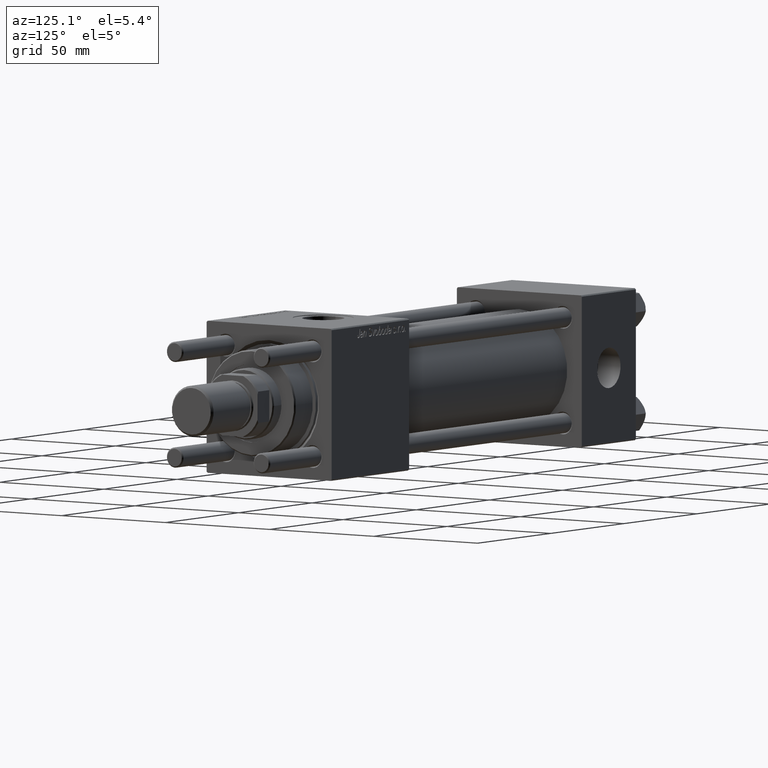
[diagram: clean part render]
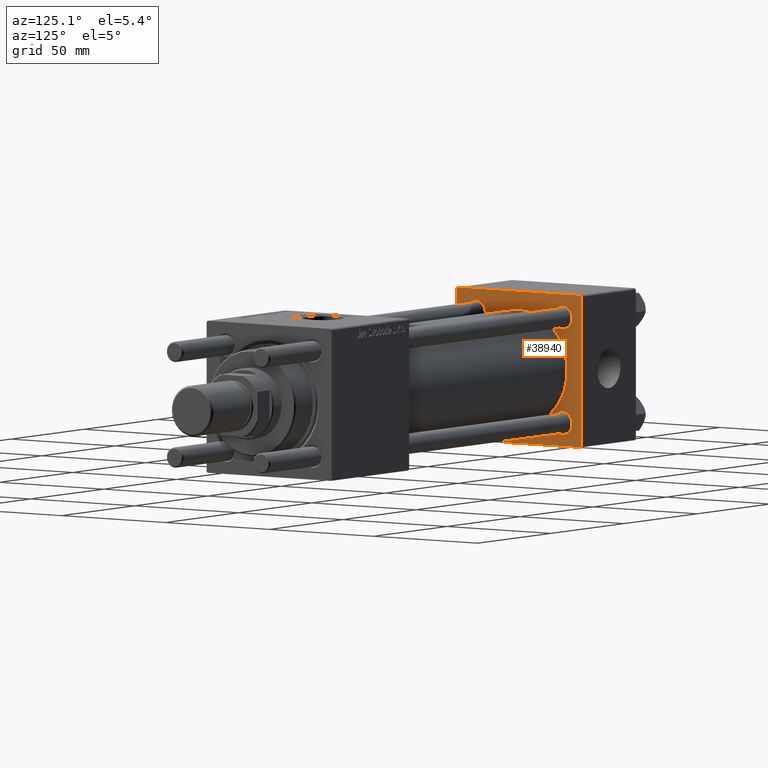
[diagram: same view with one face highlighted and labeled with its STEP entity id]
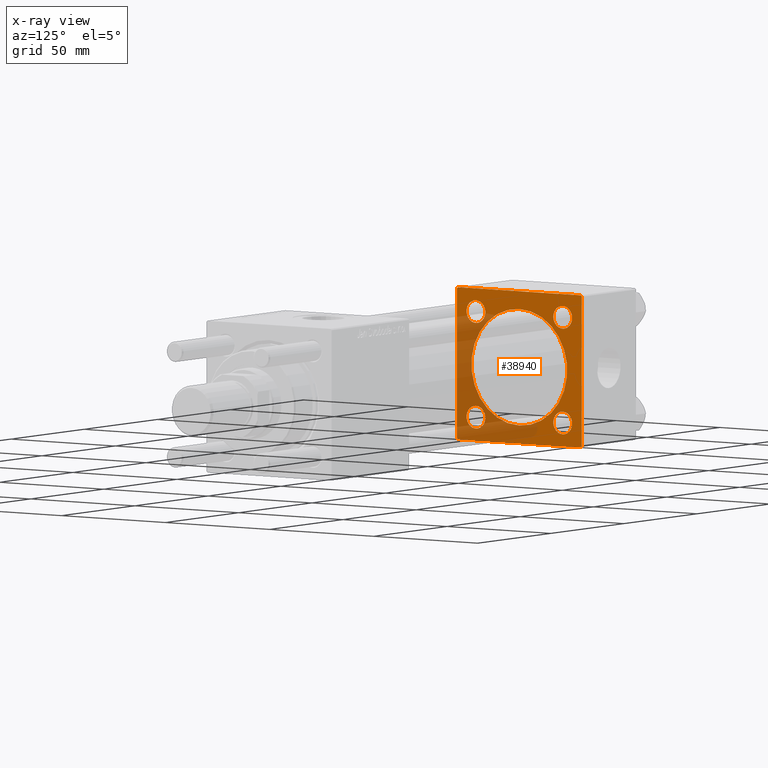
[diagram: x-ray of the same camera — body ghosted, the highlighted face saturated]
A machine part, auxiliary view. The second image highlights one B-rep face of the part: STEP entity #38940.
The next image is the same camera in x-ray: the body ghosted, the highlighted face saturated — about 38% of this face is hidden behind the body in this view.
In plain terms, the highlighted planar face has unit normal (-1, 0, 0).
Its self-contained STEP definition (entity closure, byte-faithful):
#41 = CARTESIAN_POINT ( 'NONE',  ( 37.00000000000000711, -2.602085213965210642E-15, 0.000000000000000000 ) ) ;
#98 = CARTESIAN_POINT ( 'NONE',  ( 37.00000000000000000, -20.84999999999999076, 16.35000000000002629 ) ) ;
#397 = EDGE_CURVE ( 'NONE', #18526, #7743, #7201, .T. ) ;
#408 = DIRECTION ( 'NONE',  ( 0.000000000000000000, 0.000000000000000000, 1.000000000000000000 ) ) ;
#670 = EDGE_CURVE ( 'NONE', #18494, #18833, #3389, .T. ) ;
#840 = CARTESIAN_POINT ( 'NONE',  ( 37.00000000000000000, -29.50000000000000000, -30.00000000000000711 ) ) ;
#970 = DIRECTION ( 'NONE',  ( 0.000000000000000000, 0.000000000000000000, 1.000000000000000000 ) ) ;
#1044 = AXIS2_PLACEMENT_3D ( 'NONE', #35286, #46221, #31900 ) ;
#1433 = AXIS2_PLACEMENT_3D ( 'NONE', #4886, #41295, #408 ) ;
#1826 = CIRCLE ( 'NONE', #15190, 4.499999999999976019 ) ;
#1830 = EDGE_CURVE ( 'NONE', #7504, #27516, #29202, .T. ) ;
#2014 = ORIENTED_EDGE ( 'NONE', *, *, #397, .T. ) ;
#3240 = CARTESIAN_POINT ( 'NONE',  ( 37.00000000000000000, 29.49999999999999289, 30.00000000000000000 ) ) ;
#3277 = ORIENTED_EDGE ( 'NONE', *, *, #6373, .T. ) ;
#3389 = CIRCLE ( 'NONE', #35780, 23.00000000000000000 ) ;
#3396 = DIRECTION ( 'NONE',  ( 0.000000000000000000, 0.000000000000000000, 1.000000000000000000 ) ) ;
#3906 = LINE ( 'NONE', #22142, #55835 ) ;
#3931 = DIRECTION ( 'NONE',  ( 1.000000000000000000, -0.000000000000000000, 0.000000000000000000 ) ) ;
#4718 = CARTESIAN_POINT ( 'NONE',  ( 37.00000000000000711, 2.146024240737016609E-16, -23.00000000000000000 ) ) ;
#4886 = CARTESIAN_POINT ( 'NONE',  ( 37.00000000000000000, -20.84999999999999076, -20.85000000000000497 ) ) ;
#4971 = CARTESIAN_POINT ( 'NONE',  ( 37.00000000000000000, 20.84999999999999787, -16.35000000000002274 ) ) ;
#5249 = ORIENTED_EDGE ( 'NONE', *, *, #28603, .T. ) ;
#5298 = AXIS2_PLACEMENT_3D ( 'NONE', #41849, #24263, #970 ) ;
#5618 = FACE_BOUND ( 'NONE', #48881, .T. ) ;
#5905 = CARTESIAN_POINT ( 'NONE',  ( 37.00000000000000000, 29.99999999999999289, 29.50000000000000000 ) ) ;
#6373 = EDGE_CURVE ( 'NONE', #45666, #20498, #47405, .T. ) ;
#6542 = AXIS2_PLACEMENT_3D ( 'NONE', #28912, #46810, #52144 ) ;
#7014 = CARTESIAN_POINT ( 'NONE',  ( 37.00000000000000000, -20.84999999999999076, 20.85000000000000497 ) ) ;
#7040 = ORIENTED_EDGE ( 'NONE', *, *, #13161, .T. ) ;
#7069 = AXIS2_PLACEMENT_3D ( 'NONE', #7671, #35099, #50212 ) ;
#7116 = VERTEX_POINT ( 'NONE', #29502 ) ;
#7201 = CIRCLE ( 'NONE', #40555, 4.499999999999976019 ) ;
#7217 = ORIENTED_EDGE ( 'NONE', *, *, #27292, .F. ) ;
#7232 = EDGE_CURVE ( 'NONE', #46103, #7116, #49138, .T. ) ;
#7504 = VERTEX_POINT ( 'NONE', #14820 ) ;
#7671 = CARTESIAN_POINT ( 'NONE',  ( 37.00000000000000000, 20.84999999999999787, -20.85000000000000142 ) ) ;
#7743 = VERTEX_POINT ( 'NONE', #48641 ) ;
#9175 = CARTESIAN_POINT ( 'NONE',  ( 37.00000000000000000, 20.84999999999999787, -25.34999999999997655 ) ) ;
#10215 = VERTEX_POINT ( 'NONE', #50138 ) ;
#11742 = DIRECTION ( 'NONE',  ( 0.000000000000000000, 0.000000000000000000, 1.000000000000000000 ) ) ;
#12234 = LINE ( 'NONE', #48331, #57665 ) ;
#13161 = EDGE_CURVE ( 'NONE', #36353, #46103, #48107, .T. ) ;
#14328 = CARTESIAN_POINT ( 'NONE',  ( 37.00000000000000000, 20.84999999999999787, 20.85000000000000142 ) ) ;
#14438 = ORIENTED_EDGE ( 'NONE', *, *, #1830, .T. ) ;
#14820 = CARTESIAN_POINT ( 'NONE',  ( 37.00000000000000000, 20.84999999999999787, 16.35000000000002274 ) ) ;
#14932 = EDGE_CURVE ( 'NONE', #27516, #7504, #1826, .T. ) ;
#15190 = AXIS2_PLACEMENT_3D ( 'NONE', #14328, #42350, #50704 ) ;
#15562 = CARTESIAN_POINT ( 'NONE',  ( 37.00000000000000000, 29.99999999999999289, -30.00000000000000000 ) ) ;
#16113 = CARTESIAN_POINT ( 'NONE',  ( 37.00000000000000000, 29.99999999999999289, -29.50000000000000000 ) ) ;
#16334 = CARTESIAN_POINT ( 'NONE',  ( 37.00000000000000000, -20.84999999999999076, 25.34999999999998010 ) ) ;
#17116 = CARTESIAN_POINT ( 'NONE',  ( 37.00000000000000000, -20.84999999999999076, -20.85000000000000497 ) ) ;
#18242 = CARTESIAN_POINT ( 'NONE',  ( 37.00000000000000000, 20.84999999999999787, 25.34999999999997655 ) ) ;
#18494 = VERTEX_POINT ( 'NONE', #52054 ) ;
#18517 = DIRECTION ( 'NONE',  ( 0.000000000000000000, 0.7071067811865474617, -0.7071067811865474617 ) ) ;
#18518 = DIRECTION ( 'NONE',  ( 0.000000000000000000, 0.000000000000000000, -1.000000000000000000 ) ) ;
#18526 = VERTEX_POINT ( 'NONE', #19874 ) ;
#18833 = VERTEX_POINT ( 'NONE', #4718 ) ;
#19368 = FACE_BOUND ( 'NONE', #26225, .T. ) ;
#19482 = CIRCLE ( 'NONE', #7069, 4.499999999999976019 ) ;
#19747 = CARTESIAN_POINT ( 'NONE',  ( 37.00000000000000000, -30.00000000000000000, 29.49999999999999289 ) ) ;
#19874 = CARTESIAN_POINT ( 'NONE',  ( 37.00000000000000000, -20.84999999999999076, -16.35000000000002629 ) ) ;
#20117 = CARTESIAN_POINT ( 'NONE',  ( 37.00000000000000000, 29.49999999999999289, 30.00000000000000000 ) ) ;
#20390 = EDGE_CURVE ( 'NONE', #23971, #10215, #54337, .T. ) ;
#20498 = VERTEX_POINT ( 'NONE', #16334 ) ;
#20573 = LINE ( 'NONE', #33406, #30833 ) ;
#20927 = DIRECTION ( 'NONE',  ( -1.000000000000000000, 0.000000000000000000, -0.000000000000000000 ) ) ;
#21441 = EDGE_CURVE ( 'NONE', #35320, #41674, #19482, .T. ) ;
#22142 = CARTESIAN_POINT ( 'NONE',  ( 37.00000000000000000, -29.50000000000001066, -30.00000000000000711 ) ) ;
#22430 = EDGE_CURVE ( 'NONE', #20498, #45666, #48972, .T. ) ;
#22907 = ORIENTED_EDGE ( 'NONE', *, *, #29760, .T. ) ;
#23228 = ORIENTED_EDGE ( 'NONE', *, *, #24079, .T. ) ;
#23392 = VECTOR ( 'NONE', #57007, 1000.000000000000000 ) ;
#23971 = VERTEX_POINT ( 'NONE', #19747 ) ;
#24079 = EDGE_CURVE ( 'NONE', #7116, #23971, #12234, .T. ) ;
#24263 = DIRECTION ( 'NONE',  ( 1.000000000000000000, -0.000000000000000000, 0.000000000000000000 ) ) ;
#24431 = FACE_BOUND ( 'NONE', #52541, .T. ) ;
#25976 = DIRECTION ( 'NONE',  ( -0.000000000000000000, -0.7071067811865474617, -0.7071067811865474617 ) ) ;
#26225 = EDGE_LOOP ( 'NONE', ( #32557, #46641 ) ) ;
#27292 = EDGE_CURVE ( 'NONE', #18833, #18494, #52973, .T. ) ;
#27483 = EDGE_CURVE ( 'NONE', #10215, #29433, #3906, .T. ) ;
#27516 = VERTEX_POINT ( 'NONE', #18242 ) ;
#28603 = EDGE_CURVE ( 'NONE', #32746, #54518, #57279, .T. ) ;
#28912 = CARTESIAN_POINT ( 'NONE',  ( 37.00000000000000000, 0.000000000000000000, 0.000000000000000000 ) ) ;
#29202 = CIRCLE ( 'NONE', #53932, 4.499999999999976019 ) ;
#29433 = VERTEX_POINT ( 'NONE', #840 ) ;
#29502 = CARTESIAN_POINT ( 'NONE',  ( 37.00000000000000000, -29.49999999999998579, 29.99999999999999289 ) ) ;
#29577 = CARTESIAN_POINT ( 'NONE',  ( 37.00000000000000000, 20.84999999999999787, 20.85000000000000142 ) ) ;
#29760 = EDGE_CURVE ( 'NONE', #7743, #18526, #55782, .T. ) ;
#29892 = EDGE_LOOP ( 'NONE', ( #59029, #5249, #39857, #7040, #57315, #23228, #39300, #50863 ) ) ;
#29939 = AXIS2_PLACEMENT_3D ( 'NONE', #30648, #58389, #49119 ) ;
#30396 = EDGE_CURVE ( 'NONE', #32746, #29433, #56429, .T. ) ;
#30648 = CARTESIAN_POINT ( 'NONE',  ( 37.00000000000000000, -20.84999999999999076, 20.85000000000000497 ) ) ;
#30833 = VECTOR ( 'NONE', #43517, 1000.000000000000000 ) ;
#31900 = DIRECTION ( 'NONE',  ( 0.000000000000000000, 0.000000000000000000, 1.000000000000000000 ) ) ;
#32557 = ORIENTED_EDGE ( 'NONE', *, *, #21441, .T. ) ;
#32746 = VERTEX_POINT ( 'NONE', #37719 ) ;
#33371 = FACE_BOUND ( 'NONE', #38943, .T. ) ;
#33406 = CARTESIAN_POINT ( 'NONE',  ( 37.00000000000000000, 29.99999999999999289, 30.00000000000000000 ) ) ;
#33438 = VECTOR ( 'NONE', #18518, 1000.000000000000000 ) ;
#34294 = DIRECTION ( 'NONE',  ( -0.000000000000000000, 0.7071067811865574537, 0.7071067811865376918 ) ) ;
#35099 = DIRECTION ( 'NONE',  ( -1.000000000000000000, 0.000000000000000000, -0.000000000000000000 ) ) ;
#35286 = CARTESIAN_POINT ( 'NONE',  ( 37.00000000000000000, 20.84999999999999787, -20.85000000000000142 ) ) ;
#35320 = VERTEX_POINT ( 'NONE', #9175 ) ;
#35430 = CARTESIAN_POINT ( 'NONE',  ( 37.00000000000000000, 29.99999999999999289, 30.00000000000000000 ) ) ;
#35780 = AXIS2_PLACEMENT_3D ( 'NONE', #41, #3931, #45401 ) ;
#36026 = VECTOR ( 'NONE', #43634, 1000.000000000000114 ) ;
#36126 = CARTESIAN_POINT ( 'NONE',  ( 37.00000000000000000, -30.00000000000000000, 29.99999999999999289 ) ) ;
#36353 = VERTEX_POINT ( 'NONE', #5905 ) ;
#37255 = CIRCLE ( 'NONE', #1044, 4.499999999999976019 ) ;
#37559 = PLANE ( 'NONE',  #6542 ) ;
#37719 = CARTESIAN_POINT ( 'NONE',  ( 37.00000000000000000, 29.49999999999997868, -30.00000000000000000 ) ) ;
#37852 = FACE_OUTER_BOUND ( 'NONE', #29892, .T. ) ;
#38940 = ADVANCED_FACE ( 'NONE', ( #24431, #19368, #33371, #5618, #42036, #37852 ), #37559, .F. ) ;
#38943 = EDGE_LOOP ( 'NONE', ( #3277, #52981 ) ) ;
#39300 = ORIENTED_EDGE ( 'NONE', *, *, #20390, .T. ) ;
#39611 = DIRECTION ( 'NONE',  ( 0.000000000000000000, -1.000000000000000000, -1.156482317317871725E-16 ) ) ;
#39776 = DIRECTION ( 'NONE',  ( -1.000000000000000000, 0.000000000000000000, -0.000000000000000000 ) ) ;
#39857 = ORIENTED_EDGE ( 'NONE', *, *, #55683, .F. ) ;
#40555 = AXIS2_PLACEMENT_3D ( 'NONE', #17116, #39776, #11742 ) ;
#41295 = DIRECTION ( 'NONE',  ( -1.000000000000000000, 0.000000000000000000, -0.000000000000000000 ) ) ;
#41674 = VERTEX_POINT ( 'NONE', #4971 ) ;
#41826 = CARTESIAN_POINT ( 'NONE',  ( 37.00000000000000000, 29.99999999999999289, -29.50000000000000000 ) ) ;
#41849 = CARTESIAN_POINT ( 'NONE',  ( 37.00000000000000711, -2.602085213965210642E-15, 0.000000000000000000 ) ) ;
#42036 = FACE_BOUND ( 'NONE', #43153, .T. ) ;
#42350 = DIRECTION ( 'NONE',  ( -1.000000000000000000, 0.000000000000000000, -0.000000000000000000 ) ) ;
#43153 = EDGE_LOOP ( 'NONE', ( #48508, #7217 ) ) ;
#43517 = DIRECTION ( 'NONE',  ( 0.000000000000000000, 0.000000000000000000, -1.000000000000000000 ) ) ;
#43634 = DIRECTION ( 'NONE',  ( 0.000000000000000000, -0.7071067811865474617, 0.7071067811865474617 ) ) ;
#43868 = DIRECTION ( 'NONE',  ( 0.000000000000000000, 0.000000000000000000, 1.000000000000000000 ) ) ;
#45401 = DIRECTION ( 'NONE',  ( 0.000000000000000000, 0.000000000000000000, 1.000000000000000000 ) ) ;
#45666 = VERTEX_POINT ( 'NONE', #98 ) ;
#46103 = VERTEX_POINT ( 'NONE', #3240 ) ;
#46221 = DIRECTION ( 'NONE',  ( -1.000000000000000000, 0.000000000000000000, -0.000000000000000000 ) ) ;
#46641 = ORIENTED_EDGE ( 'NONE', *, *, #50913, .T. ) ;
#46810 = DIRECTION ( 'NONE',  ( -1.000000000000000000, 0.000000000000000000, -0.000000000000000000 ) ) ;
#47405 = CIRCLE ( 'NONE', #49357, 4.499999999999976019 ) ;
#48107 = LINE ( 'NONE', #20117, #36026 ) ;
#48331 = CARTESIAN_POINT ( 'NONE',  ( 37.00000000000000000, -30.00000000000000000, 29.49999999999999289 ) ) ;
#48508 = ORIENTED_EDGE ( 'NONE', *, *, #670, .F. ) ;
#48641 = CARTESIAN_POINT ( 'NONE',  ( 37.00000000000000000, -20.84999999999999076, -25.34999999999998010 ) ) ;
#48881 = EDGE_LOOP ( 'NONE', ( #14438, #50342 ) ) ;
#48972 = CIRCLE ( 'NONE', #29939, 4.499999999999976019 ) ;
#49119 = DIRECTION ( 'NONE',  ( 0.000000000000000000, 0.000000000000000000, 1.000000000000000000 ) ) ;
#49138 = LINE ( 'NONE', #35430, #56993 ) ;
#49357 = AXIS2_PLACEMENT_3D ( 'NONE', #7014, #53247, #3396 ) ;
#50138 = CARTESIAN_POINT ( 'NONE',  ( 37.00000000000000000, -30.00000000000000000, -29.50000000000001776 ) ) ;
#50212 = DIRECTION ( 'NONE',  ( 0.000000000000000000, 0.000000000000000000, 1.000000000000000000 ) ) ;
#50342 = ORIENTED_EDGE ( 'NONE', *, *, #14932, .T. ) ;
#50704 = DIRECTION ( 'NONE',  ( 0.000000000000000000, 0.000000000000000000, 1.000000000000000000 ) ) ;
#50863 = ORIENTED_EDGE ( 'NONE', *, *, #27483, .T. ) ;
#50913 = EDGE_CURVE ( 'NONE', #41674, #35320, #37255, .T. ) ;
#52054 = CARTESIAN_POINT ( 'NONE',  ( 37.00000000000000711, -2.602085213965210642E-15, 23.00000000000000000 ) ) ;
#52144 = DIRECTION ( 'NONE',  ( -0.000000000000000000, 0.000000000000000000, 1.000000000000000000 ) ) ;
#52541 = EDGE_LOOP ( 'NONE', ( #22907, #2014 ) ) ;
#52973 = CIRCLE ( 'NONE', #5298, 23.00000000000000000 ) ;
#52981 = ORIENTED_EDGE ( 'NONE', *, *, #22430, .T. ) ;
#53247 = DIRECTION ( 'NONE',  ( -1.000000000000000000, 0.000000000000000000, -0.000000000000000000 ) ) ;
#53932 = AXIS2_PLACEMENT_3D ( 'NONE', #29577, #20927, #43868 ) ;
#54337 = LINE ( 'NONE', #36126, #33438 ) ;
#54518 = VERTEX_POINT ( 'NONE', #41826 ) ;
#55683 = EDGE_CURVE ( 'NONE', #36353, #54518, #20573, .T. ) ;
#55782 = CIRCLE ( 'NONE', #1433, 4.499999999999976019 ) ;
#55835 = VECTOR ( 'NONE', #18517, 1000.000000000000114 ) ;
#56429 = LINE ( 'NONE', #15562, #23392 ) ;
#56675 = VECTOR ( 'NONE', #34294, 999.9999999999998863 ) ;
#56993 = VECTOR ( 'NONE', #39611, 1000.000000000000000 ) ;
#57007 = DIRECTION ( 'NONE',  ( 0.000000000000000000, -1.000000000000000000, -1.156482317317871725E-16 ) ) ;
#57279 = LINE ( 'NONE', #16113, #56675 ) ;
#57315 = ORIENTED_EDGE ( 'NONE', *, *, #7232, .T. ) ;
#57665 = VECTOR ( 'NONE', #25976, 1000.000000000000114 ) ;
#58389 = DIRECTION ( 'NONE',  ( -1.000000000000000000, 0.000000000000000000, -0.000000000000000000 ) ) ;
#59029 = ORIENTED_EDGE ( 'NONE', *, *, #30396, .F. ) ;